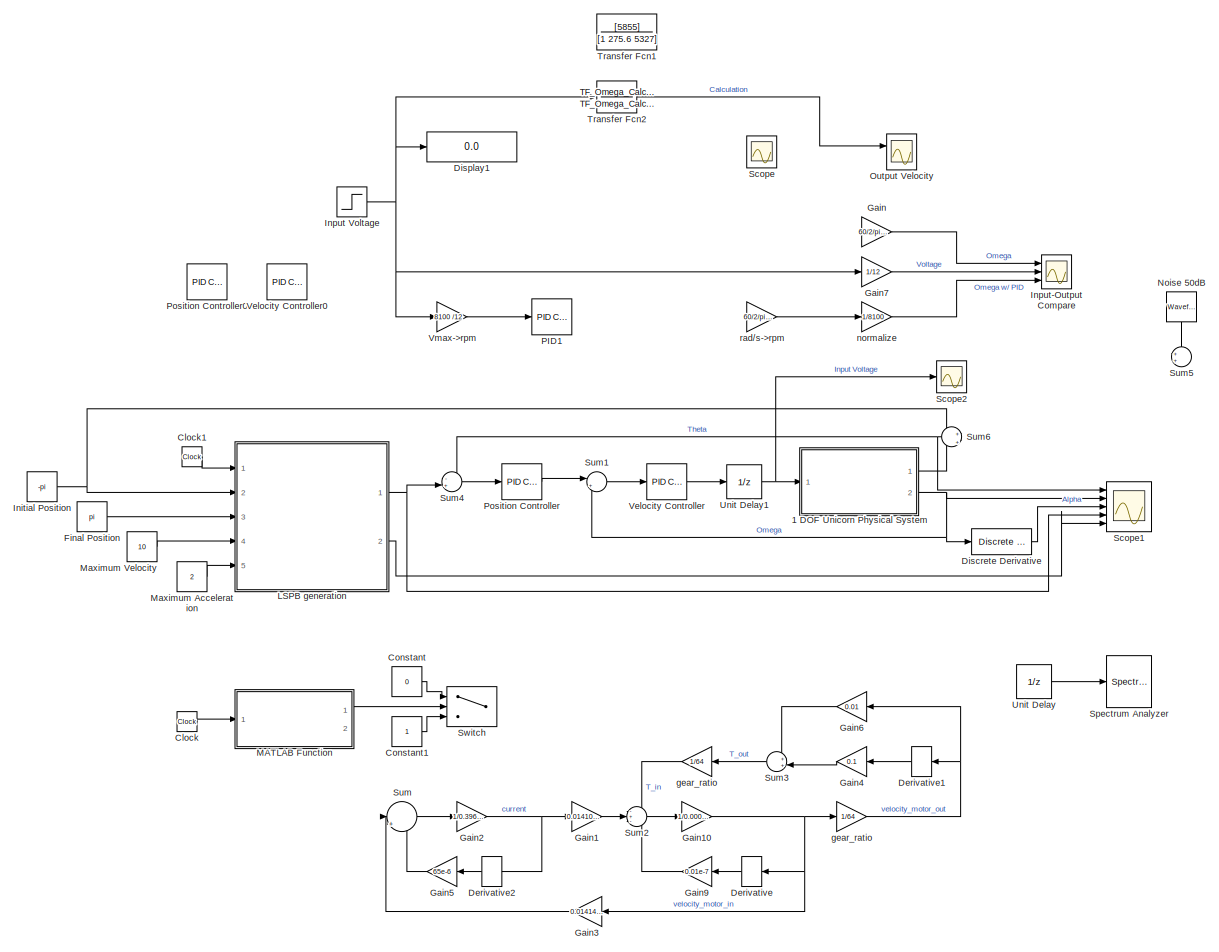
[diagram: root canvas - part 1/1, most of the canvas]
MODEL slx_2843d43b8ba3
KIND model
CONFIG AbsTol = auto
CONFIG EnableMultiTasking = off
CONFIG FixedStep = auto
CONFIG MaxStep = auto
CONFIG MinStep = auto
CONFIG RelTol = 1e-3
CONFIG SampleTimeConstraint = Unconstrained
CONFIG SolverName = VariableStepAuto
CONFIG StartTime = 0.0
CONFIG StopTime = 5
BLOCK [Gain]  gear_ratio
  Commented = on
  Gain = 1/64
  NameLocation = top
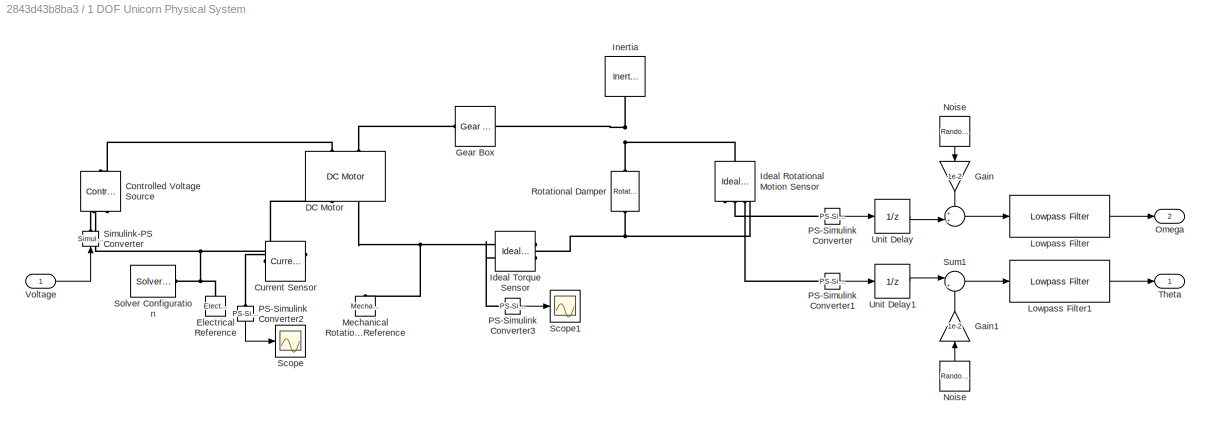
BLOCK [SubSystem] 1 DOF Unicorn Physical System
  Ports = [1, 2]
  RequestExecContextInheritance = off
BLOCK [Sum] 1 DOF Unicorn Physical System/ 
  Inputs = ++|
  Ports = [2, 1]
BLOCK [Reference] 1 DOF Unicorn Physical System/Controlled Voltage Source  REF=fl_lib/Electrical/Electrical Sources/Controlled Voltage
Source
  NameLocation = right
  Ports = [0, 0, 0, 0, 0, 1, 2]
  SourceBlock = fl_lib/Electrical/Electrical Sources/Controlled Voltage\nSource
  SourceProductBaseCode = SS
  SourceType = Controlled Voltage\nSource
BLOCK [Reference] 1 DOF Unicorn Physical System/Current Sensor  REF=fl_lib/Electrical/Electrical Sensors/Current Sensor
  NameLocation = top
  Ports = [0, 0, 0, 0, 0, 1, 2]
  SourceBlock = fl_lib/Electrical/Electrical Sensors/Current Sensor
  SourceProductBaseCode = SS
  SourceType = Current Sensor
BLOCK [Reference] 1 DOF Unicorn Physical System/DC Motor   REF=ee_lib/Electromechanical/Brushed Motors/DC Motor
  NameLocation = right
  Ports = [0, 0, 0, 0, 0, 2, 2]
  SourceBlock = ee_lib/Electromechanical/Brushed Motors/DC Motor
  SourceProductBaseCode = PS
  SourceType = DC Motor
BLOCK [Reference] 1 DOF Unicorn Physical System/Electrical Reference  REF=fl_lib/Electrical/Electrical Elements/Electrical Reference
  NameLocation = right
  Ports = [0, 0, 0, 0, 0, 1]
  SourceBlock = fl_lib/Electrical/Electrical Elements/Electrical Reference
  SourceProductBaseCode = SS
  SourceType = Electrical Reference
BLOCK [Gain] 1 DOF Unicorn Physical System/Gain
  Gain = 1e-2
  NameLocation = left
BLOCK [Gain] 1 DOF Unicorn Physical System/Gain1
  Gain = 1e-2
  NameLocation = right
BLOCK [Reference] 1 DOF Unicorn Physical System/Gear Box  REF=fl_lib/Mechanical/Mechanisms/Gear Box
  Ports = [0, 0, 0, 0, 0, 1, 1]
  SourceBlock = fl_lib/Mechanical/Mechanisms/Gear Box
  SourceProductBaseCode = SS
  SourceType = Gear Box
BLOCK [Reference] 1 DOF Unicorn Physical System/Ideal Rotational Motion Sensor  REF=fl_lib/Mechanical/Mechanical Sensors/Ideal Rotational
Motion Sensor
  NameLocation = left
  Ports = [0, 0, 0, 0, 0, 1, 3]
  SourceBlock = fl_lib/Mechanical/Mechanical Sensors/Ideal Rotational\nMotion Sensor
  SourceProductBaseCode = SS
  SourceType = Ideal Rotational\nMotion Sensor
BLOCK [Reference] 1 DOF Unicorn Physical System/Ideal Torque Sensor  REF=fl_lib/Mechanical/Mechanical Sensors/Ideal Torque Sensor
  NameLocation = top
  Ports = [0, 0, 0, 0, 0, 1, 2]
  SourceBlock = fl_lib/Mechanical/Mechanical Sensors/Ideal Torque Sensor
  SourceProductBaseCode = SS
  SourceType = Ideal Torque Sensor
BLOCK [Reference] 1 DOF Unicorn Physical System/Inertia  REF=fl_lib/Mechanical/Rotational Elements/Inertia
  NameLocation = left
  Ports = [0, 0, 0, 0, 0, 1]
  SourceBlock = fl_lib/Mechanical/Rotational Elements/Inertia
  SourceProductBaseCode = SS
  SourceType = Inertia
BLOCK [Reference] 1 DOF Unicorn Physical System/Lowpass Filter  REF=dspfdesign/Lowpass Filter
  Ports = [1, 1]
  SourceBlock = dspfdesign/Lowpass Filter
  SourceProductBaseCode = DS
  SourceType = dsp.LowpassFilter
BLOCK [Reference] 1 DOF Unicorn Physical System/Lowpass Filter1  REF=dspfdesign/Lowpass Filter
  Ports = [1, 1]
  SourceBlock = dspfdesign/Lowpass Filter
  SourceProductBaseCode = DS
  SourceType = dsp.LowpassFilter
BLOCK [Reference] 1 DOF Unicorn Physical System/Mechanical Rotational Reference  REF=fl_lib/Mechanical/Rotational Elements/Mechanical
Rotational Reference
  NameLocation = right
  Ports = [0, 0, 0, 0, 0, 1]
  SourceBlock = fl_lib/Mechanical/Rotational Elements/Mechanical\nRotational Reference
  SourceProductBaseCode = SS
  SourceType = Mechanical\nRotational Reference
BLOCK [RandomNumber] 1 DOF Unicorn Physical System/Noise
  NameLocation = top
  SampleTime = 1/1000
  Variance = 1/100000
BLOCK [RandomNumber] 1 DOF Unicorn Physical System/Noise 
  SampleTime = 1/100
  Variance = 1/100000
BLOCK [Outport] 1 DOF Unicorn Physical System/Omega
  Port = 2
BLOCK [Reference] 1 DOF Unicorn Physical System/PS-Simulink Converter  REF=nesl_utility/PS-Simulink
Converter
  Ports = [0, 1, 0, 0, 0, 1]
  SourceBlock = nesl_utility/PS-Simulink\nConverter
  SourceProductBaseCode = PW,SS
  SourceType = PS-Simulink\nConverter
BLOCK [Reference] 1 DOF Unicorn Physical System/PS-Simulink Converter1  REF=nesl_utility/PS-Simulink
Converter
  Ports = [0, 1, 0, 0, 0, 1]
  SourceBlock = nesl_utility/PS-Simulink\nConverter
  SourceProductBaseCode = PW,SS
  SourceType = PS-Simulink\nConverter
BLOCK [Reference] 1 DOF Unicorn Physical System/PS-Simulink Converter2  REF=nesl_utility/PS-Simulink
Converter
  NameLocation = left
  Ports = [0, 1, 0, 0, 0, 1]
  SourceBlock = nesl_utility/PS-Simulink\nConverter
  SourceProductBaseCode = PW,SS
  SourceType = PS-Simulink\nConverter
BLOCK [Reference] 1 DOF Unicorn Physical System/PS-Simulink Converter3  REF=nesl_utility/PS-Simulink
Converter
  Ports = [0, 1, 0, 0, 0, 1]
  SourceBlock = nesl_utility/PS-Simulink\nConverter
  SourceProductBaseCode = PW,SS
  SourceType = PS-Simulink\nConverter
BLOCK [Reference] 1 DOF Unicorn Physical System/Rotational Damper  REF=fl_lib/Mechanical/Rotational Elements/Rotational Damper
  NameLocation = left
  Ports = [0, 0, 0, 0, 0, 1, 1]
  SourceBlock = fl_lib/Mechanical/Rotational Elements/Rotational Damper
  SourceProductBaseCode = SS
  SourceType = Rotational Damper
BLOCK [Scope] 1 DOF Unicorn Physical System/Scope
  Floating = off
  NumInputPorts = 1
  Ports = [1]
  ScopeSpecificationString = Simulink.scopes.TimeScopeBlockCfg('CurrentConfiguration', extmgr.ConfigurationSet(extmgr.Configuration('Core','General UI',true),extmgr.Configuration('Core','Source UI',true),extmgr.Configuration('Sources','WiredSimulink',true,'DataLoggingVariableName','ScopeData2'),extmgr.Configuration('Visuals','Time Domain',true,'SerializedDisplays',{struct('MinYLimReal','-0.68699','MaxYLimReal','6.18294','YLab...<+1779ch>
BLOCK [Scope] 1 DOF Unicorn Physical System/Scope1
  Floating = off
  NumInputPorts = 1
  Ports = [1]
  ScopeSpecificationString = Simulink.scopes.TimeScopeBlockCfg('CurrentConfiguration', extmgr.ConfigurationSet(extmgr.Configuration('Core','General UI',true),extmgr.Configuration('Core','Source UI',true),extmgr.Configuration('Sources','WiredSimulink',true,'DataLoggingVariableName','ScopeData3'),extmgr.Configuration('Visuals','Time Domain',true,'SerializedDisplays',{struct('MinYLimReal','-0.00633','MaxYLimReal','0.0413','YLabe...<+1730ch>
BLOCK [Reference] 1 DOF Unicorn Physical System/Simulink-PS Converter  REF=nesl_utility/Simulink-PS
Converter
  NameLocation = right
  Ports = [1, 0, 0, 0, 0, 0, 1]
  SourceBlock = nesl_utility/Simulink-PS\nConverter
  SourceProductBaseCode = PW,SS
  SourceType = Simulink-PS\nConverter
BLOCK [Reference] 1 DOF Unicorn Physical System/Solver Configuration  REF=nesl_utility/Solver
Configuration
  Ports = [0, 0, 0, 0, 0, 0, 1]
  SourceBlock = nesl_utility/Solver\nConfiguration
  SourceProductBaseCode = PW,SS
  SourceType = Solver\nConfiguration
BLOCK [Sum] 1 DOF Unicorn Physical System/Sum1
  Inputs = |++
  Ports = [2, 1]
BLOCK [Outport] 1 DOF Unicorn Physical System/Theta
BLOCK [UnitDelay] 1 DOF Unicorn Physical System/Unit Delay
  HasFrameUpgradeWarning = on
  SampleTime = 1/1000
BLOCK [UnitDelay] 1 DOF Unicorn Physical System/Unit Delay1
  HasFrameUpgradeWarning = on
  SampleTime = 1/1000
BLOCK [Inport] 1 DOF Unicorn Physical System/Voltage
BLOCK [Clock] Clock
  Commented = on
BLOCK [Clock] Clock1
BLOCK [Constant] Constant
  Commented = on
  Value = 0
BLOCK [Constant] Constant1
  Commented = on
BLOCK [Derivative] Derivative
  Commented = on
  NameLocation = top
BLOCK [Derivative] Derivative1
  Commented = on
  NameLocation = top
BLOCK [Derivative] Derivative2
  Commented = on
  NameLocation = top
BLOCK [Reference] Discrete Derivative  REF=simulink/Discrete/Discrete Derivative
  Ports = [1, 1]
  SourceBlock = simulink/Discrete/Discrete Derivative
  SourceProductBaseCode = SL
  SourceType = Discrete Derivative
BLOCK [Display] Display1
  Commented = on
  Decimation = 1
  Ports = [1]
BLOCK [Constant] Final Position
  Value = pi
BLOCK [Gain] Gain
  Commented = on
  Gain = 60/2/pi *64 /8100
BLOCK [Gain] Gain1
  Commented = on
  Gain = 0.01410760907
BLOCK [Gain] Gain10
  Commented = on
  Gain = 1/0.0000000000000000000000001
BLOCK [Gain] Gain2
  Commented = on
  Gain = 1/0.3966878528
BLOCK [Gain] Gain3
  Commented = on
  Gain = 0.01414337513
  NameLocation = top
BLOCK [Gain] Gain4
  Commented = on
  Gain = 0.1
  NameLocation = top
BLOCK [Gain] Gain5
  Commented = on
  Gain = 65e-6
  NameLocation = top
BLOCK [Gain] Gain6
  Commented = on
  Gain = 0.01
  NameLocation = top
BLOCK [Gain] Gain7
  Commented = on
  Gain = 1/12
BLOCK [Gain] Gain9
  Commented = on
  Gain = 0.01e-7
  NameLocation = top
BLOCK [Constant] Initial Position
  Value = -pi
BLOCK [Step] Input Voltage
  After = 12
  Commented = on
  SampleTime = 0
  Time = 0.1
BLOCK [Scope] Input-Output Compare
  Commented = on
  Floating = off
  NumInputPorts = 3
  Ports = [3]
  ScopeSpecificationString = Simulink.scopes.TimeScopeBlockCfg('CurrentConfiguration', extmgr.ConfigurationSet(extmgr.Configuration('Core','General UI',true),extmgr.Configuration('Core','Source UI',true),extmgr.Configuration('Sources','WiredSimulink',true,'DataLoggingVariableName','ScopeData1'),extmgr.Configuration('Visuals','Time Domain',true,'SerializedDisplays',{struct('MinYLimReal','0.00436','MaxYLimReal','1.10299','YLabe...<+1483ch>
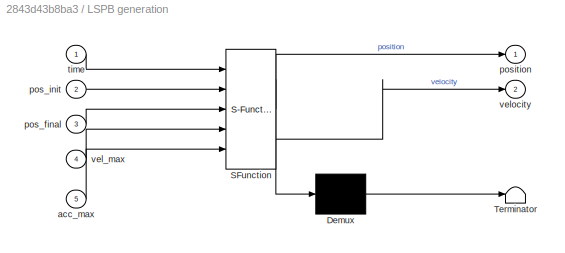
BLOCK [SubSystem] LSPB generation
  ErrorFcn = Stateflow.Translate.translate
  PermitHierarchicalResolution = ExplicitOnly
  Ports = [5, 2]
  RequestExecContextInheritance = off
  SFBlockType = MATLAB Function
  TreatAsAtomicUnit = on
BLOCK [Demux] LSPB generation/ Demux 
  Outputs = 1
  Ports = [1, 1]
BLOCK [S-Function] LSPB generation/ SFunction 
  EnableBusSupport = on
  FunctionName = sf_sfun
  PortCounts = [5 3]
  Ports = [5, 3]
  SFcnIsStateOwnerBlock = off
  SFunctionDeploymentMode = off
  Tag = Stateflow S-Function 1
BLOCK [Terminator] LSPB generation/ Terminator 
BLOCK [Inport] LSPB generation/acc_max
  Port = 5
BLOCK [Inport] LSPB generation/pos_final
  Port = 3
BLOCK [Inport] LSPB generation/pos_init
  Port = 2
BLOCK [Outport] LSPB generation/position
BLOCK [Inport] LSPB generation/time
BLOCK [Inport] LSPB generation/vel_max
  Port = 4
BLOCK [Outport] LSPB generation/velocity
  Port = 2
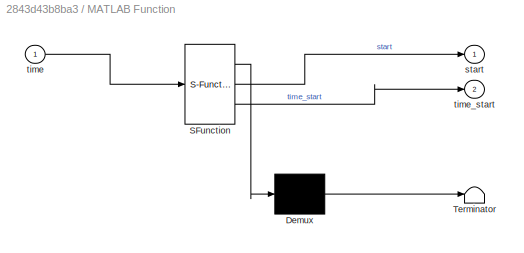
BLOCK [SubSystem] MATLAB Function
  Commented = on
  ErrorFcn = Stateflow.Translate.translate
  PermitHierarchicalResolution = ExplicitOnly
  Ports = [1, 2]
  RequestExecContextInheritance = off
  SFBlockType = MATLAB Function
  TreatAsAtomicUnit = on
BLOCK [Demux] MATLAB Function/ Demux 
  Outputs = 1
  Ports = [1, 1]
BLOCK [S-Function] MATLAB Function/ SFunction 
  EnableBusSupport = on
  FunctionName = sf_sfun
  PortCounts = [1 3]
  Ports = [1, 3]
  SFcnIsStateOwnerBlock = off
  SFunctionDeploymentMode = off
  Tag = Stateflow S-Function 2
BLOCK [Terminator] MATLAB Function/ Terminator 
BLOCK [Outport] MATLAB Function/start
BLOCK [Inport] MATLAB Function/time
BLOCK [Outport] MATLAB Function/time_start
  Port = 2
BLOCK [Constant] Maximum Acceleration
  Value = 2
BLOCK [Constant] Maximum Velocity
  Value = 10
BLOCK [Reference] Noise 50dB  REF=simulink/Sources/Waveform
Generator
  Commented = on
  NameLocation = left
  Ports = [0, 1]
  SourceBlock = simulink/Sources/Waveform\nGenerator
  SourceProductBaseCode = SL
  SourceType = WaveformGenerator
BLOCK [Scope] Output Velocity
  Commented = on
  Floating = off
  NumInputPorts = 2
  Ports = [2]
  ScopeSpecificationString = Simulink.scopes.TimeScopeBlockCfg('CurrentConfiguration', extmgr.ConfigurationSet(extmgr.Configuration('Core','General UI',true),extmgr.Configuration('Core','Source UI',true),extmgr.Configuration('Sources','WiredSimulink',true,'DataLoggingVariableName','ScopeData2'),extmgr.Configuration('Visuals','Time Domain',true,'SerializedDisplays',{struct('MinYLimReal','-0.1374','MaxYLimReal','1.23664','YLabe...<+1539ch>
BLOCK [Reference] PID1  REF=pid_lib/PID Controller
  Commented = on
  Ports = [1, 1]
  SourceBlock = pid_lib/PID Controller
  SourceProductBaseCode = SL
  SourceType = PID 1dof
BLOCK [Reference] Position Controller  REF=pid_lib/PID Controller
  Ports = [1, 1]
  SourceBlock = pid_lib/PID Controller
  SourceProductBaseCode = SL
  SourceType = PID 1dof
BLOCK [Reference] Position Controller0  REF=pid_lib/PID Controller
  Commented = on
  Ports = [1, 1]
  SourceBlock = pid_lib/PID Controller
  SourceProductBaseCode = SL
  SourceType = PID 1dof
BLOCK [Scope] Scope
  Commented = on
  Floating = off
  NumInputPorts = 1
  Ports = [1]
  ScopeSpecificationString = Simulink.scopes.TimeScopeBlockCfg('CurrentConfiguration', extmgr.ConfigurationSet(extmgr.Configuration('Core','General UI',true),extmgr.Configuration('Core','Source UI',true),extmgr.Configuration('Sources','WiredSimulink',true,'DataLoggingVariableName','ScopeData2'),extmgr.Configuration('Visuals','Time Domain',true),extmgr.Configuration('Tools','Plot Navigation',true),extmgr.Configuration('Tools',...<+40ch>
BLOCK [Scope] Scope1
  Floating = off
  NumInputPorts = 5
  Ports = [5]
  ScopeSpecificationString = Simulink.scopes.TimeScopeBlockCfg('CurrentConfiguration', extmgr.ConfigurationSet(extmgr.Configuration('Core','General UI',true),extmgr.Configuration('Core','Source UI',true),extmgr.Configuration('Sources','WiredSimulink',true,'DataLoggingVariableName','ScopeData1'),extmgr.Configuration('Visuals','Time Domain',true,'SerializedDisplays',{struct('MinYLimReal','-5.81175','MaxYLimReal','4.84374','YLab...<+1743ch>
BLOCK [Scope] Scope2
  Floating = off
  NumInputPorts = 1
  Ports = [1]
  ScopeSpecificationString = Simulink.scopes.TimeScopeBlockCfg('CurrentConfiguration', extmgr.ConfigurationSet(extmgr.Configuration('Core','General UI',true),extmgr.Configuration('Core','Source UI',true),extmgr.Configuration('Sources','WiredSimulink',true,'DataLoggingVariableName','ScopeData1'),extmgr.Configuration('Visuals','Time Domain',true,'SerializedDisplays',{struct('MinYLimReal','-0.61248','MaxYLimReal','3.8141','YLabe...<+1435ch>
BLOCK [SpectrumAnalyzer] Spectrum Analyzer
  Commented = on
  Ports = [1]
  ScopeSpecificationString = spbscopes.SpectrumAnalyzerBlockCfg('CurrentConfiguration', extmgr.ConfigurationSet(extmgr.Configuration('Core','General UI',true,'FigureColor',[0.156862745098039 0.156862745098039 0.156862745098039]),extmgr.Configuration('Core','Source UI',true),extmgr.Configuration('Sources','WiredSimulink',true),extmgr.Configuration('Sources','SimulinkEvent',false),extmgr.Configuration('Sources','Simulink',false...<+3628ch>
BLOCK [Sum] Sum
  Commented = on
  Inputs = ||+--
  Ports = [3, 1]
BLOCK [Sum] Sum1
  Inputs = |+-
  Ports = [2, 1]
BLOCK [Sum] Sum2
  Commented = on
  Inputs = -+-
  Ports = [3, 1]
BLOCK [Sum] Sum3
  Commented = on
  Inputs = ++|
  NameLocation = top
  Ports = [2, 1]
BLOCK [Sum] Sum4
  Inputs = -+|
  Ports = [2, 1]
BLOCK [Sum] Sum5
  Commented = on
  Inputs = ++|
  Ports = [2, 1]
BLOCK [Sum] Sum6
  Inputs = +|+
  NameLocation = top
  Ports = [2, 1]
BLOCK [Switch] Switch
  Commented = on
  Criteria = u2 > Threshold
  InputSameDT = off
  SaturateOnIntegerOverflow = off
BLOCK [TransferFcn] Transfer Fcn1
  Commented = on
  Denominator = [1 275.6 5327]
  Numerator = [5855]
BLOCK [TransferFcn] Transfer Fcn2
  Commented = on
  Denominator = TF_Omega_Calculation.Denominator{1,1}
  Numerator = TF_Omega_Calculation.Numerator{1,1}
BLOCK [UnitDelay] Unit Delay
  Commented = on
  HasFrameUpgradeWarning = on
  SampleTime = -1
BLOCK [UnitDelay] Unit Delay1
  HasFrameUpgradeWarning = on
  SampleTime = 1/1000
BLOCK [Reference] Velocity Controller  REF=pid_lib/PID Controller
  Ports = [1, 1]
  SourceBlock = pid_lib/PID Controller
  SourceProductBaseCode = SL
  SourceType = PID 1dof
BLOCK [Reference] Velocity Controller0  REF=pid_lib/PID Controller
  Commented = on
  Ports = [1, 1]
  SourceBlock = pid_lib/PID Controller
  SourceProductBaseCode = SL
  SourceType = PID 1dof
BLOCK [Gain] Vmax->rpm
  Commented = on
  Gain = 8100 /12
BLOCK [Gain] gear_ratio
  Commented = on
  Gain = 1/64
BLOCK [Gain] normalize
  Commented = on
  Gain = 1/8100
BLOCK [Gain] rad//s->rpm
  Commented = on
  Gain = 60/2/pi *64
LINE  gear_ratio:1 -> Sum2:1
LINE 1 DOF Unicorn Physical System/ :1 -> 1 DOF Unicorn Physical System/Lowpass Filter:1
LINE 1 DOF Unicorn Physical System/Gain1:1 -> 1 DOF Unicorn Physical System/Sum1:2
LINE 1 DOF Unicorn Physical System/Gain:1 -> 1 DOF Unicorn Physical System/ :1
LINE 1 DOF Unicorn Physical System/Lowpass Filter1:1 -> 1 DOF Unicorn Physical System/Theta:1
LINE 1 DOF Unicorn Physical System/Lowpass Filter:1 -> 1 DOF Unicorn Physical System/Omega:1
LINE 1 DOF Unicorn Physical System/Noise :1 -> 1 DOF Unicorn Physical System/Gain1:1
LINE 1 DOF Unicorn Physical System/Noise:1 -> 1 DOF Unicorn Physical System/Gain:1
LINE 1 DOF Unicorn Physical System/PS-Simulink Converter1:1 -> 1 DOF Unicorn Physical System/Unit Delay1:1
LINE 1 DOF Unicorn Physical System/PS-Simulink Converter2:1 -> 1 DOF Unicorn Physical System/Scope:1
LINE 1 DOF Unicorn Physical System/PS-Simulink Converter3:1 -> 1 DOF Unicorn Physical System/Scope1:1
LINE 1 DOF Unicorn Physical System/PS-Simulink Converter:1 -> 1 DOF Unicorn Physical System/Unit Delay:1
LINE 1 DOF Unicorn Physical System/Sum1:1 -> 1 DOF Unicorn Physical System/Lowpass Filter1:1
LINE 1 DOF Unicorn Physical System/Unit Delay1:1 -> 1 DOF Unicorn Physical System/Sum1:1
LINE 1 DOF Unicorn Physical System/Unit Delay:1 -> 1 DOF Unicorn Physical System/ :2
LINE 1 DOF Unicorn Physical System/Voltage:1 -> 1 DOF Unicorn Physical System/Simulink-PS Converter:1
LINE 1 DOF Unicorn Physical System:1 -> Sum6:2
NET 1 DOF Unicorn Physical System:2 -> Discrete Derivative:1, Scope1:2, Sum1:2
LINE Clock1:1 -> LSPB generation:1
LINE Clock:1 -> MATLAB Function:1
LINE Constant1:1 -> Switch:3
LINE Constant:1 -> Switch:1
LINE Derivative1:1 -> Gain4:1
LINE Derivative2:1 -> Gain5:1
LINE Derivative:1 -> Gain9:1
LINE Discrete Derivative:1 -> Scope1:3
LINE Final Position:1 -> LSPB generation:3
NET Gain10:1 -> Derivative:1, Gain3:1, gear_ratio:1
LINE Gain1:1 -> Sum2:2
NET Gain2:1 -> Derivative2:1, Gain1:1
LINE Gain3:1 -> Sum:2
LINE Gain4:1 -> Sum3:2
LINE Gain5:1 -> Sum:3
LINE Gain6:1 -> Sum3:1
LINE Gain7:1 -> Input-Output Compare:2
LINE Gain9:1 -> Sum2:3
LINE Gain:1 -> Input-Output Compare:1
NET Initial Position:1 -> LSPB generation:2, Sum6:1
NET Input Voltage:1 -> Display1:1, Gain7:1, Transfer Fcn2:1, Vmax->rpm:1
NET LSPB generation:1 -> Scope1:4, Sum4:2
LINE LSPB generation:2 -> Scope1:5
LINE MATLAB Function:1 -> Switch:2
LINE Maximum Acceleration:1 -> LSPB generation:5
LINE Maximum Velocity:1 -> LSPB generation:4
LINE Noise 50dB:1 -> Sum5:1
LINE Position Controller:1 -> Sum1:1
LINE Sum1:1 -> Velocity Controller:1
LINE Sum2:1 -> Gain10:1
LINE Sum3:1 ->  gear_ratio:1
LINE Sum4:1 -> Position Controller:1
NET Sum6:1 -> Scope1:1, Sum4:1
LINE Sum:1 -> Gain2:1
LINE Transfer Fcn2:1 -> Output Velocity:1
NET Unit Delay1:1 -> 1 DOF Unicorn Physical System:1, Scope2:1
LINE Unit Delay:1 -> Spectrum Analyzer:1
LINE Velocity Controller:1 -> Unit Delay1:1
LINE Vmax->rpm:1 -> PID1:1
NET gear_ratio:1 -> Derivative1:1, Gain6:1
LINE normalize:1 -> Input-Output Compare:3
LINE rad//s->rpm:1 -> normalize:1
PLINE 1 DOF Unicorn Physical System/Controlled Voltage Source:LConn1 -- 1 DOF Unicorn Physical System/DC Motor :LConn1
PLINE 1 DOF Unicorn Physical System/Controlled Voltage Source:RConn1 -- 1 DOF Unicorn Physical System/Simulink-PS Converter:RConn1
PNET net1: 1 DOF Unicorn Physical System/Controlled Voltage Source:RConn2 -- 1 DOF Unicorn Physical System/Current Sensor:RConn2 -- 1 DOF Unicorn Physical System/Electrical Reference:LConn1 -- 1 DOF Unicorn Physical System/Solver Configuration:RConn1
PLINE 1 DOF Unicorn Physical System/Current Sensor:LConn1 -- 1 DOF Unicorn Physical System/DC Motor :RConn1
PLINE 1 DOF Unicorn Physical System/Current Sensor:RConn1 -- 1 DOF Unicorn Physical System/PS-Simulink Converter2:LConn1
PLINE 1 DOF Unicorn Physical System/DC Motor :LConn2 -- 1 DOF Unicorn Physical System/Gear Box:LConn1
PNET net2: 1 DOF Unicorn Physical System/DC Motor :RConn2 -- 1 DOF Unicorn Physical System/Ideal Torque Sensor:RConn1 -- 1 DOF Unicorn Physical System/Mechanical Rotational Reference:LConn1
PNET net3: 1 DOF Unicorn Physical System/Gear Box:RConn1 -- 1 DOF Unicorn Physical System/Ideal Rotational Motion Sensor:LConn1 -- 1 DOF Unicorn Physical System/Inertia:LConn1 -- 1 DOF Unicorn Physical System/Rotational Damper:LConn1
PNET net4: 1 DOF Unicorn Physical System/Ideal Rotational Motion Sensor:RConn1 -- 1 DOF Unicorn Physical System/Ideal Torque Sensor:LConn1 -- 1 DOF Unicorn Physical System/Rotational Damper:RConn1
PLINE 1 DOF Unicorn Physical System/Ideal Rotational Motion Sensor:RConn2 -- 1 DOF Unicorn Physical System/PS-Simulink Converter:LConn1
PLINE 1 DOF Unicorn Physical System/Ideal Rotational Motion Sensor:RConn3 -- 1 DOF Unicorn Physical System/PS-Simulink Converter1:LConn1
PLINE 1 DOF Unicorn Physical System/Ideal Torque Sensor:RConn2 -- 1 DOF Unicorn Physical System/PS-Simulink Converter3:LConn1
note: NET lines group one-source signal fan-out (src -> all destinations, sorted); 1:1 wires keep LINE; PNET lines group multi-terminal physical nets as a canonical sorted terminal list (undirected conserving connections); 2-terminal nets keep the pairwise PLINE form
CHART LSPB generation states=1 transitions=1
  STATE_LABEL 'eML_blk_kernel()'
  STATE_LABEL 'SCRIPT:\nfunction [position, velocity] = fcn(time, pos_init, pos_final, vel_max, acc_max)\ns = (pos_final-pos_init);\n\nif (abs(vel_max)^2)/2/abs(acc_max) >= abs(s)/2 \n    Tb = sqrt(abs(s)/acc_max);\n    \n    if time < Tb\n        position = 0.5*acc_max*(time^2) + pos_init;\n        velocity = acc_max*time;\n    elseif time < 2*Tb\n        position = sqrt(acc_max*abs(s))*(time-Tb) - 0.5*acc_max*((time-Tb)^...<+925ch>'
CHART MATLAB Function states=1 transitions=1
  STATE_LABEL 'eML_blk_kernel()'
  STATE_LABEL 'SCRIPT:\nfunction [start, time_start] = fcn(time)\n\nif (time >= 1)\n    start = 1;\n    time_start = time-1;\nelse\n    start = 0;\nend\n'
CHART  states=0 transitions=0
CHART  states=0 transitions=0
